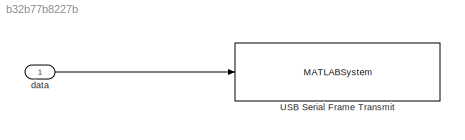
MODEL slx_b32b77b8227b
KIND model
CONFIG AbsTol = auto
CONFIG FixedStep = auto
CONFIG MaxStep = auto
CONFIG MinStep = auto
CONFIG RelTol = 1e-3
CONFIG SampleTimeConstraint = Unconstrained
CONFIG Solver = FixedStepAuto
CONFIG SolverMode = Auto
CONFIG SolverName = FixedStepAuto
CONFIG StartTime = 0.0
CONFIG StopTime = 10.0
BLOCK [MATLABSystem] USB Serial Frame Transmit
  EOFbyte = 255
  MaskDisplay = disp('frdmUSBserialFrameTxClass');\nport_label('input',1,'data');
  MaskType = frdmUSBserialFrameTxClass
  Ports = [1]
  SOFbyte = 254
  SimulateUsing = Code generation
  System = frdmUSBserialFrameTxClass
BLOCK [Inport] data
  IconDisplay = Port number
LINE data:1 -> USB Serial Frame Transmit:1
